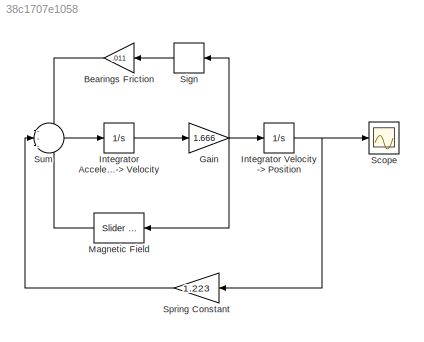
MODEL slx_38c1707e1058
KIND model
BLOCK [Gain] Bearings Friction
  Gain = .011
  OutDataTypeStr = Inherit: Inherit via internal rule
  ParamDataTypeStr = Inherit: Inherit via internal rule
  SaturateOnIntegerOverflow = off
BLOCK [Gain] Gain
  Gain = 1.666
  OutDataTypeStr = Inherit: Inherit via internal rule
  ParamDataTypeStr = Inherit: Inherit via internal rule
  SaturateOnIntegerOverflow = off
BLOCK [Integrator] Integrator Acceleartion -> Velocity
  Ports = [1, 1]
BLOCK [Integrator] Integrator Velocity -> Position 
  InitialCondition = -.4
  Ports = [1, 1]
BLOCK [Reference] Magnetic Field  REF=simulink/Math
Operations/Slider
Gain
  Ports = [1, 1]
  SourceBlock = simulink/Math\nOperations/Slider\nGain
  SourceType = Slider Gain
  gain = 0
  high = 3
  low = 0
BLOCK [Scope] Scope
  Decimation = 10
  Floating = off
  NumInputPorts = 1
  Ports = [1]
  ShowLegends = off
  TimeRange = 20
  YMax = 0.1
  YMin = -0.4
BLOCK [Signum] Sign
BLOCK [Gain] Spring Constant 
  Gain = 1.223
  OutDataTypeStr = Inherit: Inherit via internal rule
  ParamDataTypeStr = Inherit: Inherit via internal rule
  SaturateOnIntegerOverflow = off
BLOCK [Sum] Sum
  IconShape = round
  InputSameDT = off
  Inputs = ---
  OutDataTypeStr = Inherit: Inherit via internal rule
  Ports = [3, 1]
  SaturateOnIntegerOverflow = off
LINE Bearings Friction:1 -> Sum:1
NET Gain:1 -> Integrator Velocity -> Position :1, Magnetic Field:1, Sign:1
LINE Integrator Acceleartion -> Velocity:1 -> Gain:1
NET Integrator Velocity -> Position :1 -> Scope:1, Spring Constant :1
LINE Magnetic Field:1 -> Sum:3
LINE Sign:1 -> Bearings Friction:1
LINE Spring Constant :1 -> Sum:2
LINE Sum:1 -> Integrator Acceleartion -> Velocity:1
note: NET lines group one-source signal fan-out (src -> all destinations, sorted); 1:1 wires keep LINE
